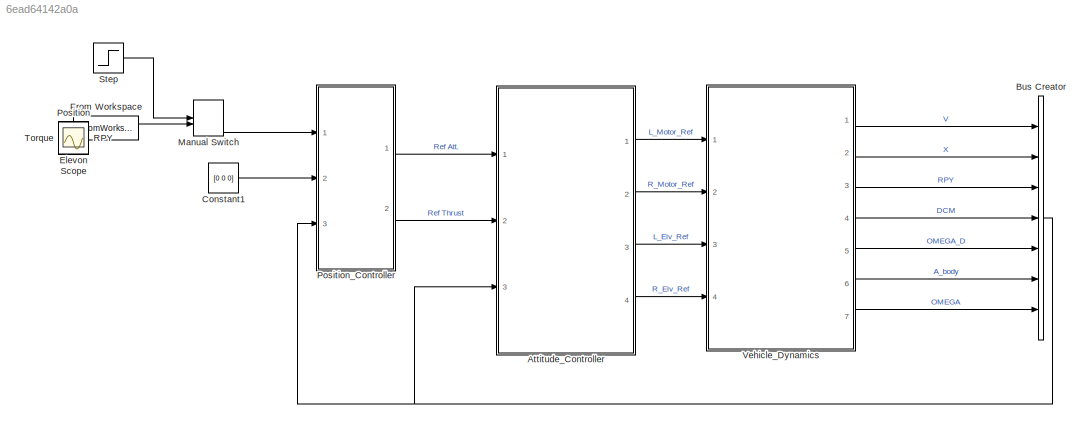
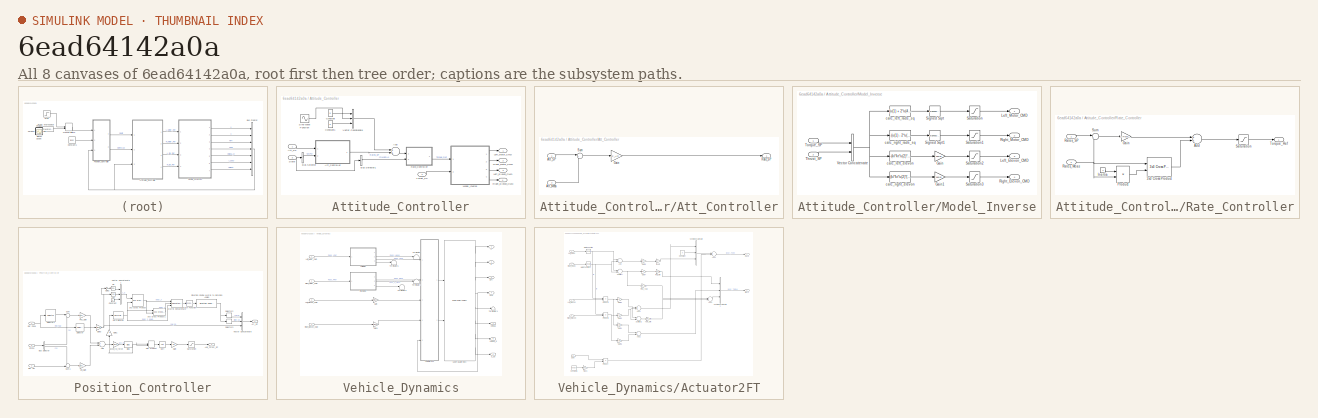
[diagram: thumbnail index - all 8 canvases of the model, root first then tree order]
MODEL slx_6ead64142a0a
KIND model
CONFIG AbsTol = auto
CONFIG EnableMultiTasking = off
CONFIG FixedStep = 0.0005
CONFIG MaxStep = auto
CONFIG MinStep = auto
CONFIG RelTol = 1e-3
CONFIG SampleTimeConstraint = Unconstrained
CONFIG Solver = VariableStepAuto
CONFIG SolverName = VariableStepAuto
CONFIG StartTime = 0.0
CONFIG StopTime = 10
WORKSPACE source: MAT-file member
WORKSPACE MCOS: class17 (value not decoded)
WORKSPACE MCOS: class17 (value not decoded)
BLOCK [SubSystem] Attitude_Controller
  Ports = [3, 4]
  RequestExecContextInheritance = off
  Variant = off
BLOCK [Sum] Attitude_Controller/Add
  InputSameDT = off
  OutDataTypeStr = Inherit: Inherit via internal rule
  Ports = [2, 1]
  SaturateOnIntegerOverflow = off
BLOCK [SubSystem] Attitude_Controller/Att_Controller
  Ports = [2, 1]
  RequestExecContextInheritance = off
  Variant = off
BLOCK [Inport] Attitude_Controller/Att_Controller/Att_Meas
  IconDisplay = Port number
  Port = 2
BLOCK [Inport] Attitude_Controller/Att_Controller/Att_SP
  IconDisplay = Port number
BLOCK [Gain] Attitude_Controller/Att_Controller/Gain
  Gain = P_Att
  OutDataTypeStr = Inherit: Inherit via internal rule
  ParamDataTypeStr = Inherit: Inherit via internal rule
  SaturateOnIntegerOverflow = off
BLOCK [Outport] Attitude_Controller/Att_Controller/Rate_SP
  IconDisplay = Port number
BLOCK [Sum] Attitude_Controller/Att_Controller/Sum
  IconShape = round
  InputSameDT = off
  Inputs = |+-
  OutDataTypeStr = Inherit: Inherit via internal rule
  Ports = [2, 1]
  SaturateOnIntegerOverflow = off
BLOCK [Inport] Attitude_Controller/Att_SP
  IconDisplay = Port number
BLOCK [BusSelector] Attitude_Controller/Bus Selector
  OutputAsBus = off
  OutputSignals = RPY
  Ports = [1, 1]
BLOCK [BusSelector] Attitude_Controller/Bus Selector1
  OutputAsBus = off
  OutputSignals = OMEGA
  Ports = [1, 1]
BLOCK [Constant] Attitude_Controller/Constant
  Value = 0
BLOCK [Constant] Attitude_Controller/Constant1
  Value = 0
BLOCK [Outport] Attitude_Controller/Left_Elevon_CMD
  IconDisplay = Port number
  Port = 3
BLOCK [Outport] Attitude_Controller/Left_Motor_CMD
  IconDisplay = Port number
BLOCK [SubSystem] Attitude_Controller/Model_Inverse
  Ports = [2, 4]
  RequestExecContextInheritance = off
  Variant = off
BLOCK [Gain] Attitude_Controller/Model_Inverse/Gain
  Gain = 180/pi
  OutDataTypeStr = Inherit: Inherit via internal rule
  ParamDataTypeStr = Inherit: Inherit via internal rule
  SaturateOnIntegerOverflow = off
BLOCK [Gain] Attitude_Controller/Model_Inverse/Gain1
  Gain = 180/pi
  OutDataTypeStr = Inherit: Inherit via internal rule
  ParamDataTypeStr = Inherit: Inherit via internal rule
  SaturateOnIntegerOverflow = off
BLOCK [Outport] Attitude_Controller/Model_Inverse/Left_Elevon_CMD
  IconDisplay = Port number
  Port = 3
BLOCK [Outport] Attitude_Controller/Model_Inverse/Left_Motor_CMD
  IconDisplay = Port number
BLOCK [Outport] Attitude_Controller/Model_Inverse/Right_Elevon_CMD
  IconDisplay = Port number
  Port = 4
BLOCK [Outport] Attitude_Controller/Model_Inverse/Right_Motor_CMD
  IconDisplay = Port number
  Port = 2
BLOCK [Saturate] Attitude_Controller/Model_Inverse/Saturation
  InputPortMap = u0
  LowerLimit = 0
  Ports = [1, 1]
  UpperLimit = Motor_Rads_Max
BLOCK [Saturate] Attitude_Controller/Model_Inverse/Saturation1
  InputPortMap = u0
  LowerLimit = 0
  Ports = [1, 1]
  UpperLimit = Motor_Rads_Max
BLOCK [Saturate] Attitude_Controller/Model_Inverse/Saturation2
  InputPortMap = u0
  LowerLimit = -60
  Ports = [1, 1]
  UpperLimit = 60
BLOCK [Saturate] Attitude_Controller/Model_Inverse/Saturation3
  InputPortMap = u0
  LowerLimit = -60
  Ports = [1, 1]
  UpperLimit = 60
BLOCK [Sqrt] Attitude_Controller/Model_Inverse/Signed Sqrt
  Operator = signedSqrt
BLOCK [Sqrt] Attitude_Controller/Model_Inverse/Signed Sqrt1
  Operator = signedSqrt
BLOCK [Inport] Attitude_Controller/Model_Inverse/Thrust_SP
  IconDisplay = Port number
  Port = 2
BLOCK [Inport] Attitude_Controller/Model_Inverse/Torque_SP
  IconDisplay = Port number
BLOCK [Concatenate] Attitude_Controller/Model_Inverse/Vector Concatenate
  Ports = [2, 1]
BLOCK [Fcn] Attitude_Controller/Model_Inverse/calc_left_elevon
  Expr = -(kl*kt*u(2)*(l^2)+kp*kt*u(3)*l-km*kp*kt*u(1))/(2*u(4)*kl*kp*l^2+kl*kp*u(1)*l)
BLOCK [Fcn] Attitude_Controller/Model_Inverse/calc_left_rads_sq
  Expr = (u(1) + 2*u(4)*l)/(2*kt*l)
BLOCK [Fcn] Attitude_Controller/Model_Inverse/calc_right_elevon
  Expr = (kl*kt*u(2)*(l^2)-kp*kt*u(3)*l+km*kp*kt*u(1))/(-2*u(4)*kl*kp*l^2+kl*kp*u(1)*l)
BLOCK [Fcn] Attitude_Controller/Model_Inverse/calc_right_rads_sq
  Expr = -(u(1) - 2*u(4)*l)/(2*kt*l)
BLOCK [SubSystem] Attitude_Controller/Rate_Controller
  Ports = [2, 1]
  RequestExecContextInheritance = off
  Variant = off
BLOCK [Reference] Attitude_Controller/Rate_Controller/3x3 Cross Product  REF=sharedutil/3x3 Cross Product
  Ports = [2, 1]
  SourceBlock = sharedutil/3x3 Cross Product
  SourceType = CrossProduct
BLOCK [Sum] Attitude_Controller/Rate_Controller/Add
  InputSameDT = off
  OutDataTypeStr = Inherit: Inherit via internal rule
  Ports = [2, 1]
  SaturateOnIntegerOverflow = off
BLOCK [Gain] Attitude_Controller/Rate_Controller/Gain
  Gain = 1./Rates_TC.*J
  Multiplication = Matrix(K*u)
  OutDataTypeStr = Inherit: Inherit via internal rule
  ParamDataTypeStr = Inherit: Inherit via internal rule
  SaturateOnIntegerOverflow = off
BLOCK [Constant] Attitude_Controller/Rate_Controller/Inertia
  Value = J
BLOCK [Product] Attitude_Controller/Rate_Controller/Product
  InputSameDT = off
  Multiplication = Matrix(*)
  OutDataTypeStr = Inherit: Inherit via internal rule
  Ports = [2, 1]
  RndMeth = Floor
  SaturateOnIntegerOverflow = off
BLOCK [Inport] Attitude_Controller/Rate_Controller/Rates_Meas
  IconDisplay = Port number
  Port = 2
BLOCK [Inport] Attitude_Controller/Rate_Controller/Rates_SP
  IconDisplay = Port number
BLOCK [Saturate] Attitude_Controller/Rate_Controller/Saturation
  InputPortMap = u0
  LowerLimit = -Rate_Max
  Ports = [1, 1]
  UpperLimit = Rate_Max
BLOCK [Sum] Attitude_Controller/Rate_Controller/Sum
  IconShape = round
  InputSameDT = off
  Inputs = |+-
  OutDataTypeStr = Inherit: Inherit via internal rule
  Ports = [2, 1]
  SaturateOnIntegerOverflow = off
BLOCK [Outport] Attitude_Controller/Rate_Controller/Torque_Ref
  IconDisplay = Port number
BLOCK [Outport] Attitude_Controller/Right_Elevon_CMD
  IconDisplay = Port number
  Port = 4
BLOCK [Outport] Attitude_Controller/Right_Motor_CMD
  IconDisplay = Port number
  Port = 2
BLOCK [Sin] Attitude_Controller/Sine Wave Function
  Amplitude = 0
  Frequency = 9.66
  Ports = [0, 1]
  SampleTime = 0
BLOCK [Inport] Attitude_Controller/State
  IconDisplay = Port number
  Port = 3
BLOCK [Inport] Attitude_Controller/Thrust_SP
  IconDisplay = Port number
  Port = 2
BLOCK [Concatenate] Attitude_Controller/Vector Concatenate
  NumInputs = 3
  Ports = [3, 1]
BLOCK [BusCreator] Bus Creator
  DisplayOption = bar
  InheritFromInputs = on
  Inputs = 7
  Ports = [7, 1]
BLOCK [Constant] Constant1
  Value = [0 0 0]
BLOCK [Scope] Elevon
  IOType = viewer
  NumInputPorts = 1
  Ports = []
  ScopeSpecificationString = Simulink.scopes.TimeScopeBlockCfg('CurrentConfiguration', extmgr.ConfigurationSet(extmgr.Configuration('Core','General UI',true),extmgr.Configuration('Core','Source UI',true),extmgr.Configuration('Sources','WiredSimulink',true,'DataLoggingVariableName','ScopeData6'),extmgr.Configuration('Visuals','Time Domain',true,'SerializedDisplays',{struct('MinYLimReal','-75.00000','MaxYLimReal','75.00000','YL...<+1482ch>
BLOCK [Scope] FT
  IOType = viewer
  NumInputPorts = 1
  Ports = []
  ScopeSpecificationString = Simulink.scopes.TimeScopeBlockCfg('CurrentConfiguration', extmgr.ConfigurationSet(extmgr.Configuration('Core','General UI',true),extmgr.Configuration('Core','Source UI',true),extmgr.Configuration('Sources','WiredSimulink',true,'DataLoggingVariableName','ScopeData5'),extmgr.Configuration('Visuals','Time Domain',true,'SerializedDisplays',{struct('MinYLimReal','-7.8362','MaxYLimReal','7.40402','YLabe...<+2176ch>
BLOCK [FromWorkspace] From Workspace
  Commented = on
  SampleTime = 0
  VariableName = ts
  ZeroCross = on
BLOCK [ManualSwitch] Manual Switch
BLOCK [Scope] Motor
  IOType = viewer
  NumInputPorts = 1
  Ports = []
  ScopeSpecificationString = Simulink.scopes.TimeScopeBlockCfg('CurrentConfiguration', extmgr.ConfigurationSet(extmgr.Configuration('Core','General UI',true),extmgr.Configuration('Core','Source UI',true),extmgr.Configuration('Sources','WiredSimulink',true,'DataLoggingVariableName','ScopeData4'),extmgr.Configuration('Visuals','Time Domain',true,'SerializedDisplays',{struct('MinYLimReal','-100.00026','MaxYLimReal','900.00003','...<+1520ch>
BLOCK [Scope] Position
  IOType = viewer
  NumInputPorts = 1
  Ports = []
  ScopeSpecificationString = Simulink.scopes.TimeScopeBlockCfg('CurrentConfiguration', extmgr.ConfigurationSet(extmgr.Configuration('Core','General UI',true),extmgr.Configuration('Core','Source UI',true),extmgr.Configuration('Sources','WiredSimulink',true,'DataLoggingVariableName','ScopeData7'),extmgr.Configuration('Visuals','Time Domain',true,'SerializedDisplays',{struct('MinYLimReal','-1.41173','MaxYLimReal','0.23066','YLab...<+7753ch>
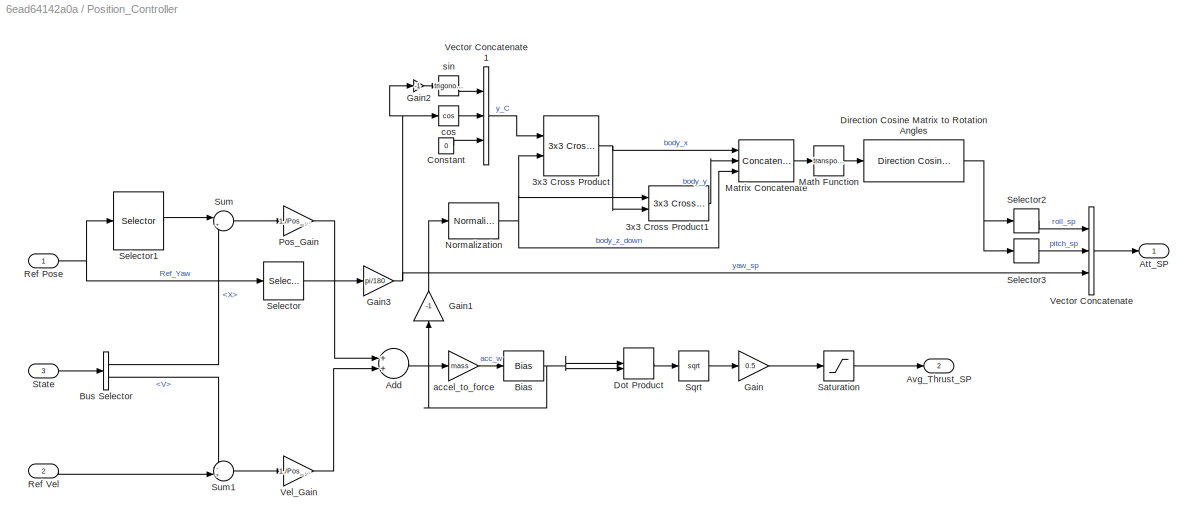
BLOCK [SubSystem] Position_Controller
  Ports = [3, 2]
  RequestExecContextInheritance = off
  Variant = off
BLOCK [Reference] Position_Controller/3x3 Cross Product  REF=sharedutil/3x3 Cross Product
  Ports = [2, 1]
  SourceBlock = sharedutil/3x3 Cross Product
  SourceType = CrossProduct
BLOCK [Reference] Position_Controller/3x3 Cross Product1  REF=sharedutil/3x3 Cross Product
  Ports = [2, 1]
  SourceBlock = sharedutil/3x3 Cross Product
  SourceType = CrossProduct
BLOCK [Sum] Position_Controller/Add
  InputSameDT = off
  OutDataTypeStr = Inherit: Inherit via internal rule
  Ports = [2, 1]
  SaturateOnIntegerOverflow = off
BLOCK [Outport] Position_Controller/Att_SP
  IconDisplay = Port number
BLOCK [Outport] Position_Controller/Avg_Thrust_SP
  IconDisplay = Port number
  Port = 2
BLOCK [Bias] Position_Controller/Bias
  Bias = [0 0 -mass*g]
  SaturateOnIntegerOverflow = off
BLOCK [BusSelector] Position_Controller/Bus Selector
  OutputAsBus = off
  OutputSignals = X,V
  Ports = [1, 2]
BLOCK [Constant] Position_Controller/Constant
  Value = 0
BLOCK [Reference] Position_Controller/Direction Cosine Matrix to Rotation Angles  REF=sharedtransform/Direction Cosine Matrix
to Rotation Angles
  AttributesFormatString = Rotation Order: %<rotationOrder>
  Ports = [1, 1]
  SourceBlock = sharedtransform/Direction Cosine Matrix\nto Rotation Angles
  SourceType = DCM2Ang
BLOCK [DotProduct] Position_Controller/Dot Product
  OutDataTypeStr = Inherit: Inherit via internal rule
BLOCK [Gain] Position_Controller/Gain
  Gain = 0.5
  OutDataTypeStr = Inherit: Inherit via internal rule
  ParamDataTypeStr = Inherit: Inherit via internal rule
  SaturateOnIntegerOverflow = off
BLOCK [Gain] Position_Controller/Gain1
  Gain = -1
  OutDataTypeStr = Inherit: Inherit via internal rule
  ParamDataTypeStr = Inherit: Inherit via internal rule
  SaturateOnIntegerOverflow = off
BLOCK [Gain] Position_Controller/Gain2
  Gain = -1
  OutDataTypeStr = Inherit: Inherit via internal rule
  ParamDataTypeStr = Inherit: Inherit via internal rule
  SaturateOnIntegerOverflow = off
BLOCK [Gain] Position_Controller/Gain3
  Gain = pi/180
  OutDataTypeStr = Inherit: Inherit via internal rule
  ParamDataTypeStr = Inherit: Inherit via internal rule
  SaturateOnIntegerOverflow = off
BLOCK [Math] Position_Controller/Math Function
  Operator = transpose
  Ports = [1, 1]
BLOCK [Concatenate] Position_Controller/Matrix Concatenate
  ConcatenateDimension = 2
  Mode = Multidimensional array
  NumInputs = 3
  Ports = [3, 1]
BLOCK [Reference] Position_Controller/Normalization  REF=dspmathops/Normalization
  Ports = [1, 1]
  SourceBlock = dspmathops/Normalization
  SourceProductBaseCode = DS
  SourceProductName = DSP System Toolbox
  SourceType = Normalization
BLOCK [Gain] Position_Controller/Pos_Gain
  Gain = 1./Pos_TC./Pos_TC
  OutDataTypeStr = Inherit: Inherit via internal rule
  ParamDataTypeStr = Inherit: Inherit via internal rule
  SaturateOnIntegerOverflow = off
BLOCK [Inport] Position_Controller/Ref Pose
  IconDisplay = Port number
BLOCK [Inport] Position_Controller/Ref Vel
  IconDisplay = Port number
  Port = 2
BLOCK [Saturate] Position_Controller/Saturation
  InputPortMap = u0
  LowerLimit = 0
  Ports = [1, 1]
  UpperLimit = Inf
BLOCK [Selector] Position_Controller/Selector
  IndexOptions = Index vector (dialog)
  Indices = 4
  InputPortWidth = 4
  OutputSizes = 1
  Ports = [1, 1]
BLOCK [Selector] Position_Controller/Selector1
  IndexOptions = Index vector (dialog)
  Indices = [1 2 3]
  InputPortWidth = 4
  OutputSizes = 1
  Ports = [1, 1]
BLOCK [Selector] Position_Controller/Selector2
  IndexOptions = Index vector (dialog)
  Indices = 3
  InputPortWidth = 3
  OutputSizes = 1
  Ports = [1, 1]
BLOCK [Selector] Position_Controller/Selector3
  IndexOptions = Index vector (dialog)
  Indices = 2
  InputPortWidth = 3
  OutputSizes = 1
  Ports = [1, 1]
BLOCK [Sqrt] Position_Controller/Sqrt
BLOCK [Inport] Position_Controller/State
  IconDisplay = Port number
  Port = 3
BLOCK [Sum] Position_Controller/Sum
  IconShape = round
  InputSameDT = off
  Inputs = |+-
  OutDataTypeStr = Inherit: Inherit via internal rule
  Ports = [2, 1]
  SaturateOnIntegerOverflow = off
BLOCK [Sum] Position_Controller/Sum1
  IconShape = round
  InputSameDT = off
  Inputs = -+|
  OutDataTypeStr = Inherit: Inherit via internal rule
  Ports = [2, 1]
  SaturateOnIntegerOverflow = off
BLOCK [Concatenate] Position_Controller/Vector Concatenate
  NumInputs = 3
  Ports = [3, 1]
BLOCK [Concatenate] Position_Controller/Vector Concatenate1
  NumInputs = 3
  Ports = [3, 1]
BLOCK [Gain] Position_Controller/Vel_Gain
  Gain = 1./Pos_TC.*Pos_DR
  OutDataTypeStr = Inherit: Inherit via internal rule
  ParamDataTypeStr = Inherit: Inherit via internal rule
  SaturateOnIntegerOverflow = off
BLOCK [Gain] Position_Controller/accel_to_force
  Gain = mass
  OutDataTypeStr = Inherit: Inherit via internal rule
  ParamDataTypeStr = Inherit: Inherit via internal rule
  SaturateOnIntegerOverflow = off
BLOCK [Trigonometry] Position_Controller/cos
  Operator = cos
  Ports = [1, 1]
BLOCK [Trigonometry] Position_Controller/sin
  Ports = [1, 1]
BLOCK [Scope] RPY
  IOType = viewer
  NumInputPorts = 1
  Ports = []
  ScopeSpecificationString = Simulink.scopes.TimeScopeBlockCfg('CurrentConfiguration', extmgr.ConfigurationSet(extmgr.Configuration('Core','General UI',true),extmgr.Configuration('Core','Source UI',true),extmgr.Configuration('Sources','WiredSimulink',true,'DataLoggingVariableName','ScopeData1'),extmgr.Configuration('Visuals','Time Domain',true,'SerializedDisplays',{struct('MinYLimReal','-2.65453','MaxYLimReal','0.32877','YLab...<+1480ch>
BLOCK [Scope] Scope
  IOType = viewer
  NumInputPorts = 1
  Ports = []
  ScopeSpecificationString = Simulink.scopes.TimeScopeBlockCfg('CurrentConfiguration', extmgr.ConfigurationSet(extmgr.Configuration('Core','General UI',true),extmgr.Configuration('Core','Source UI',true),extmgr.Configuration('Sources','WiredSimulink',true,'DataLoggingVariableName','ScopeData1'),extmgr.Configuration('Visuals','Time Domain',true,'SerializedDisplays',{struct('MinYLimReal','-10.00000','MaxYLimReal','10.00000','YL...<+1394ch>
BLOCK [Step] Step
  After = [-1 0 -0 0]
  Before = [0 0 -0 0]
  SampleTime = 0
  Time = 5
BLOCK [Scope] Torque
  IOType = viewer
  NumInputPorts = 1
  Ports = []
  ScopeSpecificationString = Simulink.scopes.TimeScopeBlockCfg('CurrentConfiguration', extmgr.ConfigurationSet(extmgr.Configuration('Core','General UI',true),extmgr.Configuration('Core','Source UI',true),extmgr.Configuration('Sources','WiredSimulink',true,'DataLoggingVariableName','ScopeData7'),extmgr.Configuration('Visuals','Time Domain',true,'SerializedDisplays',{struct('MinYLimReal','-11.16519','MaxYLimReal','1.68502','YLa...<+1500ch>
BLOCK [SubSystem] Vehicle_Dynamics
  Ports = [4, 7]
  RequestExecContextInheritance = off
  Variant = off
BLOCK [Reference] Vehicle_Dynamics/6DOF (Quaternion)  REF=shared6dof/6DOF (Euler Angles)
  Ports = [2, 8]
  SourceBlock = shared6dof/6DOF (Euler Angles)
  SourceType = 6DOF EoM (Body Axis)
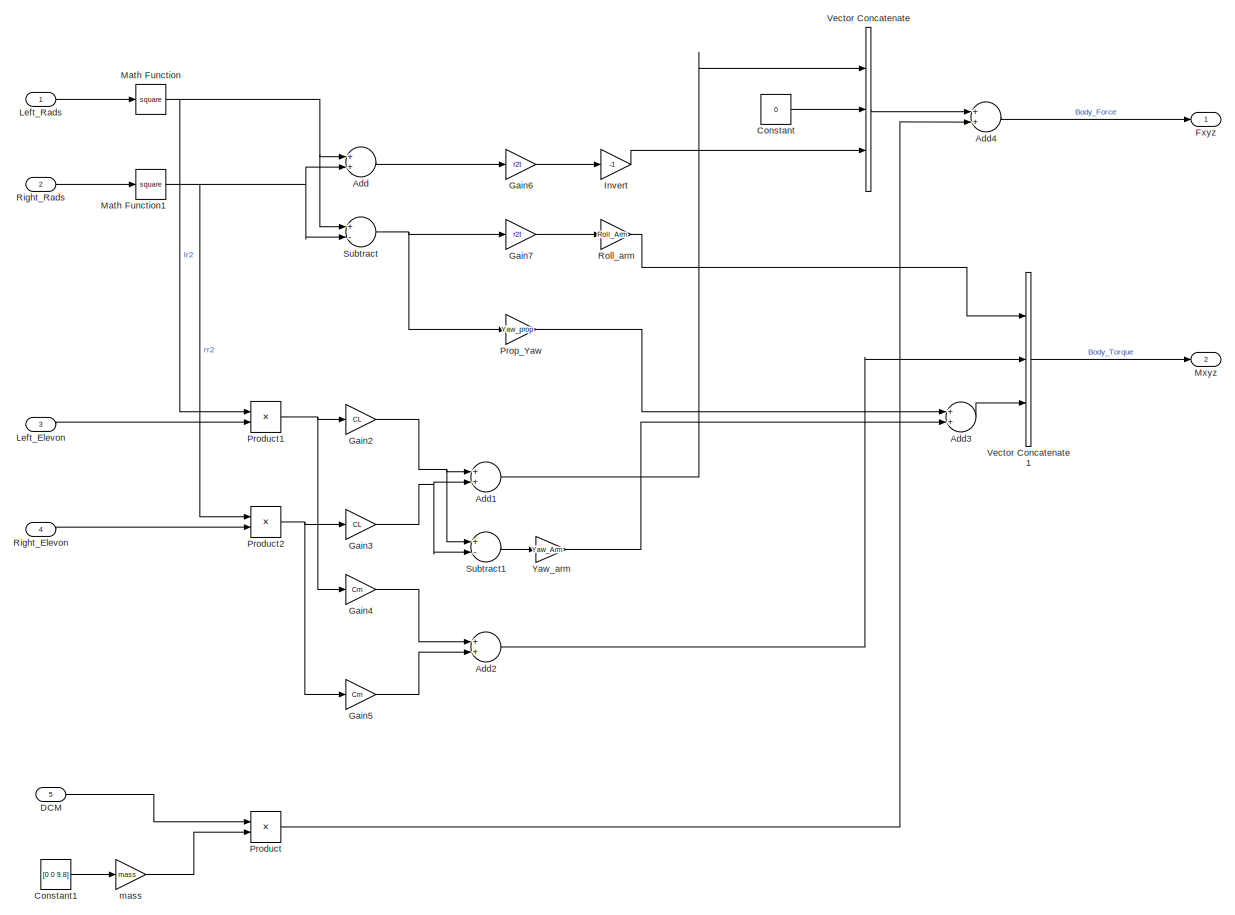
[diagram: Vehicle_Dynamics/Actuator2FT - part 1/1, most of the canvas]
BLOCK [SubSystem] Vehicle_Dynamics/Actuator2FT
  Ports = [5, 2]
  RequestExecContextInheritance = off
  Variant = off
BLOCK [Sum] Vehicle_Dynamics/Actuator2FT/Add
  InputSameDT = off
  OutDataTypeStr = Inherit: Inherit via internal rule
  Ports = [2, 1]
  SaturateOnIntegerOverflow = off
BLOCK [Sum] Vehicle_Dynamics/Actuator2FT/Add1
  InputSameDT = off
  OutDataTypeStr = Inherit: Inherit via internal rule
  Ports = [2, 1]
  SaturateOnIntegerOverflow = off
BLOCK [Sum] Vehicle_Dynamics/Actuator2FT/Add2
  InputSameDT = off
  OutDataTypeStr = Inherit: Inherit via internal rule
  Ports = [2, 1]
  SaturateOnIntegerOverflow = off
BLOCK [Sum] Vehicle_Dynamics/Actuator2FT/Add3
  InputSameDT = off
  OutDataTypeStr = Inherit: Inherit via internal rule
  Ports = [2, 1]
  SaturateOnIntegerOverflow = off
BLOCK [Sum] Vehicle_Dynamics/Actuator2FT/Add4
  InputSameDT = off
  OutDataTypeStr = Inherit: Inherit via internal rule
  Ports = [2, 1]
  SaturateOnIntegerOverflow = off
BLOCK [Constant] Vehicle_Dynamics/Actuator2FT/Constant
  Value = 0
BLOCK [Constant] Vehicle_Dynamics/Actuator2FT/Constant1
  Value = [0 0 9.8]
BLOCK [Inport] Vehicle_Dynamics/Actuator2FT/DCM
  IconDisplay = Port number
  Port = 5
BLOCK [Outport] Vehicle_Dynamics/Actuator2FT/Fxyz
  IconDisplay = Port number
BLOCK [Gain] Vehicle_Dynamics/Actuator2FT/Gain2
  Gain = CL
  OutDataTypeStr = Inherit: Inherit via internal rule
  ParamDataTypeStr = Inherit: Inherit via internal rule
  SaturateOnIntegerOverflow = off
BLOCK [Gain] Vehicle_Dynamics/Actuator2FT/Gain3
  Gain = CL
  OutDataTypeStr = Inherit: Inherit via internal rule
  ParamDataTypeStr = Inherit: Inherit via internal rule
  SaturateOnIntegerOverflow = off
BLOCK [Gain] Vehicle_Dynamics/Actuator2FT/Gain4
  Gain = Cm
  OutDataTypeStr = Inherit: Inherit via internal rule
  ParamDataTypeStr = Inherit: Inherit via internal rule
  SaturateOnIntegerOverflow = off
BLOCK [Gain] Vehicle_Dynamics/Actuator2FT/Gain5
  Gain = Cm
  OutDataTypeStr = Inherit: Inherit via internal rule
  ParamDataTypeStr = Inherit: Inherit via internal rule
  SaturateOnIntegerOverflow = off
BLOCK [Gain] Vehicle_Dynamics/Actuator2FT/Gain6
  Gain = r2t
  OutDataTypeStr = Inherit: Inherit via internal rule
  ParamDataTypeStr = Inherit: Inherit via internal rule
  SaturateOnIntegerOverflow = off
BLOCK [Gain] Vehicle_Dynamics/Actuator2FT/Gain7
  Gain = r2t
  OutDataTypeStr = Inherit: Inherit via internal rule
  ParamDataTypeStr = Inherit: Inherit via internal rule
  SaturateOnIntegerOverflow = off
BLOCK [Gain] Vehicle_Dynamics/Actuator2FT/Invert
  Gain = -1
  OutDataTypeStr = Inherit: Inherit via internal rule
  ParamDataTypeStr = Inherit: Inherit via internal rule
  SaturateOnIntegerOverflow = off
BLOCK [Inport] Vehicle_Dynamics/Actuator2FT/Left_Elevon
  IconDisplay = Port number
  Port = 3
BLOCK [Inport] Vehicle_Dynamics/Actuator2FT/Left_Rads
  IconDisplay = Port number
BLOCK [Math] Vehicle_Dynamics/Actuator2FT/Math Function
  Operator = square
  Ports = [1, 1]
BLOCK [Math] Vehicle_Dynamics/Actuator2FT/Math Function1
  Operator = square
  Ports = [1, 1]
BLOCK [Outport] Vehicle_Dynamics/Actuator2FT/Mxyz
  IconDisplay = Port number
  Port = 2
BLOCK [Product] Vehicle_Dynamics/Actuator2FT/Product
  InputSameDT = off
  Multiplication = Matrix(*)
  OutDataTypeStr = Inherit: Inherit via internal rule
  Ports = [2, 1]
  RndMeth = Floor
  SaturateOnIntegerOverflow = off
BLOCK [Product] Vehicle_Dynamics/Actuator2FT/Product1
  InputSameDT = off
  OutDataTypeStr = Inherit: Inherit via internal rule
  Ports = [2, 1]
  RndMeth = Floor
  SaturateOnIntegerOverflow = off
BLOCK [Product] Vehicle_Dynamics/Actuator2FT/Product2
  InputSameDT = off
  OutDataTypeStr = Inherit: Inherit via internal rule
  Ports = [2, 1]
  RndMeth = Floor
  SaturateOnIntegerOverflow = off
BLOCK [Gain] Vehicle_Dynamics/Actuator2FT/Prop_Yaw
  Gain = Yaw_prop
  OutDataTypeStr = Inherit: Inherit via internal rule
  ParamDataTypeStr = Inherit: Inherit via internal rule
  SaturateOnIntegerOverflow = off
BLOCK [Inport] Vehicle_Dynamics/Actuator2FT/Right_Elevon
  IconDisplay = Port number
  Port = 4
BLOCK [Inport] Vehicle_Dynamics/Actuator2FT/Right_Rads
  IconDisplay = Port number
  Port = 2
BLOCK [Gain] Vehicle_Dynamics/Actuator2FT/Roll_arm
  Gain = Roll_Arm
  OutDataTypeStr = Inherit: Inherit via internal rule
  ParamDataTypeStr = Inherit: Inherit via internal rule
  SaturateOnIntegerOverflow = off
BLOCK [Sum] Vehicle_Dynamics/Actuator2FT/Subtract
  InputSameDT = off
  Inputs = +-
  OutDataTypeStr = Inherit: Inherit via internal rule
  Ports = [2, 1]
  SaturateOnIntegerOverflow = off
BLOCK [Sum] Vehicle_Dynamics/Actuator2FT/Subtract1
  InputSameDT = off
  Inputs = +-
  OutDataTypeStr = Inherit: Inherit via internal rule
  Ports = [2, 1]
  SaturateOnIntegerOverflow = off
BLOCK [Concatenate] Vehicle_Dynamics/Actuator2FT/Vector Concatenate
  NumInputs = 3
  Ports = [3, 1]
BLOCK [Concatenate] Vehicle_Dynamics/Actuator2FT/Vector Concatenate1
  NumInputs = 3
  Ports = [3, 1]
BLOCK [Gain] Vehicle_Dynamics/Actuator2FT/Yaw_arm
  Gain = Yaw_Arm
  OutDataTypeStr = Inherit: Inherit via internal rule
  ParamDataTypeStr = Inherit: Inherit via internal rule
  SaturateOnIntegerOverflow = off
BLOCK [Gain] Vehicle_Dynamics/Actuator2FT/mass
  Gain = mass
  OutDataTypeStr = Inherit: Inherit via internal rule
  ParamDataTypeStr = Inherit: Inherit via internal rule
  SaturateOnIntegerOverflow = off
BLOCK [Outport] Vehicle_Dynamics/DCM
  IconDisplay = Port number
  Port = 4
BLOCK [Gain] Vehicle_Dynamics/Gain
  Gain = pi/180
  OutDataTypeStr = Inherit: Inherit via internal rule
  ParamDataTypeStr = Inherit: Inherit via internal rule
  SaturateOnIntegerOverflow = off
BLOCK [Gain] Vehicle_Dynamics/Gain1
  Gain = pi/180
  OutDataTypeStr = Inherit: Inherit via internal rule
  ParamDataTypeStr = Inherit: Inherit via internal rule
  SaturateOnIntegerOverflow = off
BLOCK [ModelReference] Vehicle_Dynamics/Left Motor
  ModelNameDialog = Nonlinear_Motor_Tracking.slx
  ModelReferenceVersion = 1.31
  Ports = [1, 3]
  Variant = off
BLOCK [Inport] Vehicle_Dynamics/Left_Elevon_CMD
  IconDisplay = Port number
  Port = 3
BLOCK [Inport] Vehicle_Dynamics/Left_Motor_CMD
  IconDisplay = Port number
BLOCK [Outport] Vehicle_Dynamics/RPY
  IconDisplay = Port number
  Port = 3
BLOCK [ModelReference] Vehicle_Dynamics/Right Motor
  ModelNameDialog = Nonlinear_Motor_Tracking.slx
  ModelReferenceVersion = 1.31
  Ports = [1, 3]
  Variant = off
BLOCK [Inport] Vehicle_Dynamics/Right_Elevon_CMD
  IconDisplay = Port number
  Port = 4
BLOCK [Inport] Vehicle_Dynamics/Right_Motor_CMD
  IconDisplay = Port number
  Port = 2
BLOCK [Terminator] Vehicle_Dynamics/Terminator
BLOCK [Terminator] Vehicle_Dynamics/Terminator1
BLOCK [Terminator] Vehicle_Dynamics/Terminator4
BLOCK [Terminator] Vehicle_Dynamics/Terminator5
BLOCK [Terminator] Vehicle_Dynamics/Terminator6
BLOCK [Outport] Vehicle_Dynamics/V
  IconDisplay = Port number
BLOCK [Outport] Vehicle_Dynamics/X
  IconDisplay = Port number
  Port = 2
BLOCK [Outport] Vehicle_Dynamics/a_bb
  IconDisplay = Port number
  Port = 6
BLOCK [Outport] Vehicle_Dynamics/omega
  IconDisplay = Port number
  Port = 7
BLOCK [Outport] Vehicle_Dynamics/omega_d
  IconDisplay = Port number
  Port = 5
LINE Attitude_Controller/Add:1 -> Attitude_Controller/Rate_Controller:1
LINE Attitude_Controller/Att_Controller/Att_Meas:1 -> Attitude_Controller/Att_Controller/Sum:2
LINE Attitude_Controller/Att_Controller/Att_SP:1 -> Attitude_Controller/Att_Controller/Sum:1
LINE Attitude_Controller/Att_Controller/Gain:1 -> Attitude_Controller/Att_Controller/Rate_SP:1
LINE Attitude_Controller/Att_Controller/Sum:1 -> Attitude_Controller/Att_Controller/Gain:1
LINE Attitude_Controller/Att_Controller:1 -> Attitude_Controller/Add:2
LINE Attitude_Controller/Att_SP:1 -> Attitude_Controller/Att_Controller:1
LINE Attitude_Controller/Bus Selector1:1 -> Attitude_Controller/Rate_Controller:2
LINE Attitude_Controller/Bus Selector:1 -> Attitude_Controller/Att_Controller:2
LINE Attitude_Controller/Constant1:1 -> Attitude_Controller/Vector Concatenate:3
LINE Attitude_Controller/Constant:1 -> Attitude_Controller/Vector Concatenate:1
LINE Attitude_Controller/Model_Inverse/Gain1:1 -> Attitude_Controller/Model_Inverse/Saturation3:1
LINE Attitude_Controller/Model_Inverse/Gain:1 -> Attitude_Controller/Model_Inverse/Saturation2:1
LINE Attitude_Controller/Model_Inverse/Saturation1:1 -> Attitude_Controller/Model_Inverse/Right_Motor_CMD:1
LINE Attitude_Controller/Model_Inverse/Saturation2:1 -> Attitude_Controller/Model_Inverse/Left_Elevon_CMD:1
LINE Attitude_Controller/Model_Inverse/Saturation3:1 -> Attitude_Controller/Model_Inverse/Right_Elevon_CMD:1
LINE Attitude_Controller/Model_Inverse/Saturation:1 -> Attitude_Controller/Model_Inverse/Left_Motor_CMD:1
LINE Attitude_Controller/Model_Inverse/Signed Sqrt1:1 -> Attitude_Controller/Model_Inverse/Saturation1:1
LINE Attitude_Controller/Model_Inverse/Signed Sqrt:1 -> Attitude_Controller/Model_Inverse/Saturation:1
LINE Attitude_Controller/Model_Inverse/Thrust_SP:1 -> Attitude_Controller/Model_Inverse/Vector Concatenate:2
LINE Attitude_Controller/Model_Inverse/Torque_SP:1 -> Attitude_Controller/Model_Inverse/Vector Concatenate:1
NET Attitude_Controller/Model_Inverse/Vector Concatenate:1 -> Attitude_Controller/Model_Inverse/calc_left_elevon:1, Attitude_Controller/Model_Inverse/calc_left_rads_sq:1, Attitude_Controller/Model_Inverse/calc_right_elevon:1, Attitude_Controller/Model_Inverse/calc_right_rads_sq:1
LINE Attitude_Controller/Model_Inverse/calc_left_elevon:1 -> Attitude_Controller/Model_Inverse/Gain:1
LINE Attitude_Controller/Model_Inverse/calc_left_rads_sq:1 -> Attitude_Controller/Model_Inverse/Signed Sqrt:1
LINE Attitude_Controller/Model_Inverse/calc_right_elevon:1 -> Attitude_Controller/Model_Inverse/Gain1:1
LINE Attitude_Controller/Model_Inverse/calc_right_rads_sq:1 -> Attitude_Controller/Model_Inverse/Signed Sqrt1:1
LINE Attitude_Controller/Model_Inverse:1 -> Attitude_Controller/Left_Motor_CMD:1
LINE Attitude_Controller/Model_Inverse:2 -> Attitude_Controller/Right_Motor_CMD:1
LINE Attitude_Controller/Model_Inverse:3 -> Attitude_Controller/Left_Elevon_CMD:1
LINE Attitude_Controller/Model_Inverse:4 -> Attitude_Controller/Right_Elevon_CMD:1
LINE Attitude_Controller/Rate_Controller/3x3 Cross Product:1 -> Attitude_Controller/Rate_Controller/Add:2
LINE Attitude_Controller/Rate_Controller/Add:1 -> Attitude_Controller/Rate_Controller/Saturation:1
LINE Attitude_Controller/Rate_Controller/Gain:1 -> Attitude_Controller/Rate_Controller/Add:1
LINE Attitude_Controller/Rate_Controller/Inertia:1 -> Attitude_Controller/Rate_Controller/Product:1
LINE Attitude_Controller/Rate_Controller/Product:1 -> Attitude_Controller/Rate_Controller/3x3 Cross Product:2
NET Attitude_Controller/Rate_Controller/Rates_Meas:1 -> Attitude_Controller/Rate_Controller/3x3 Cross Product:1, Attitude_Controller/Rate_Controller/Product:2, Attitude_Controller/Rate_Controller/Sum:2
LINE Attitude_Controller/Rate_Controller/Rates_SP:1 -> Attitude_Controller/Rate_Controller/Sum:1
LINE Attitude_Controller/Rate_Controller/Saturation:1 -> Attitude_Controller/Rate_Controller/Torque_Ref:1
LINE Attitude_Controller/Rate_Controller/Sum:1 -> Attitude_Controller/Rate_Controller/Gain:1
LINE Attitude_Controller/Rate_Controller:1 -> Attitude_Controller/Model_Inverse:1
LINE Attitude_Controller/Sine Wave Function:1 -> Attitude_Controller/Vector Concatenate:2
NET Attitude_Controller/State:1 -> Attitude_Controller/Bus Selector1:1, Attitude_Controller/Bus Selector:1
LINE Attitude_Controller/Thrust_SP:1 -> Attitude_Controller/Model_Inverse:2
LINE Attitude_Controller/Vector Concatenate:1 -> Attitude_Controller/Add:1
LINE Attitude_Controller:1 -> Vehicle_Dynamics:1
LINE Attitude_Controller:2 -> Vehicle_Dynamics:2
LINE Attitude_Controller:3 -> Vehicle_Dynamics:3
LINE Attitude_Controller:4 -> Vehicle_Dynamics:4
NET Bus Creator:1 -> Attitude_Controller:3, Position_Controller:3
LINE Constant1:1 -> Position_Controller:2
LINE From Workspace:1 -> Manual Switch:2
LINE Manual Switch:1 -> Position_Controller:1
LINE Position_Controller/3x3 Cross Product1:1 -> Position_Controller/Matrix Concatenate:2
NET Position_Controller/3x3 Cross Product:1 -> Position_Controller/3x3 Cross Product1:2, Position_Controller/Matrix Concatenate:1
LINE Position_Controller/Add:1 -> Position_Controller/accel_to_force:1
NET Position_Controller/Bias:1 -> Position_Controller/Dot Product:1, Position_Controller/Dot Product:2, Position_Controller/Gain1:1
LINE Position_Controller/Bus Selector:1 -> Position_Controller/Sum:2
LINE Position_Controller/Bus Selector:2 -> Position_Controller/Sum1:1
LINE Position_Controller/Constant:1 -> Position_Controller/Vector Concatenate1:3
NET Position_Controller/Direction Cosine Matrix to Rotation Angles:1 -> Position_Controller/Selector2:1, Position_Controller/Selector3:1
LINE Position_Controller/Dot Product:1 -> Position_Controller/Sqrt:1
LINE Position_Controller/Gain1:1 -> Position_Controller/Normalization:1
LINE Position_Controller/Gain2:1 -> Position_Controller/sin:1
NET Position_Controller/Gain3:1 -> Position_Controller/Gain2:1, Position_Controller/Vector Concatenate:3, Position_Controller/cos:1
LINE Position_Controller/Gain:1 -> Position_Controller/Saturation:1
LINE Position_Controller/Math Function:1 -> Position_Controller/Direction Cosine Matrix to Rotation Angles:1
LINE Position_Controller/Matrix Concatenate:1 -> Position_Controller/Math Function:1
NET Position_Controller/Normalization:1 -> Position_Controller/3x3 Cross Product1:1, Position_Controller/3x3 Cross Product:2, Position_Controller/Matrix Concatenate:3
LINE Position_Controller/Pos_Gain:1 -> Position_Controller/Add:1
NET Position_Controller/Ref Pose:1 -> Position_Controller/Selector1:1, Position_Controller/Selector:1
LINE Position_Controller/Ref Vel:1 -> Position_Controller/Sum1:2
LINE Position_Controller/Saturation:1 -> Position_Controller/Avg_Thrust_SP:1
LINE Position_Controller/Selector1:1 -> Position_Controller/Sum:1
LINE Position_Controller/Selector2:1 -> Position_Controller/Vector Concatenate:1
LINE Position_Controller/Selector3:1 -> Position_Controller/Vector Concatenate:2
LINE Position_Controller/Selector:1 -> Position_Controller/Gain3:1
LINE Position_Controller/Sqrt:1 -> Position_Controller/Gain:1
LINE Position_Controller/State:1 -> Position_Controller/Bus Selector:1
LINE Position_Controller/Sum1:1 -> Position_Controller/Vel_Gain:1
LINE Position_Controller/Sum:1 -> Position_Controller/Pos_Gain:1
LINE Position_Controller/Vector Concatenate1:1 -> Position_Controller/3x3 Cross Product:1
LINE Position_Controller/Vector Concatenate:1 -> Position_Controller/Att_SP:1
LINE Position_Controller/Vel_Gain:1 -> Position_Controller/Add:2
LINE Position_Controller/accel_to_force:1 -> Position_Controller/Bias:1
LINE Position_Controller/cos:1 -> Position_Controller/Vector Concatenate1:2
LINE Position_Controller/sin:1 -> Position_Controller/Vector Concatenate1:1
LINE Position_Controller:1 -> Attitude_Controller:1
LINE Position_Controller:2 -> Attitude_Controller:2
LINE Step:1 -> Manual Switch:1
LINE Vehicle_Dynamics/6DOF (Quaternion):1 -> Vehicle_Dynamics/V:1
LINE Vehicle_Dynamics/6DOF (Quaternion):2 -> Vehicle_Dynamics/X:1
LINE Vehicle_Dynamics/6DOF (Quaternion):3 -> Vehicle_Dynamics/RPY:1
NET Vehicle_Dynamics/6DOF (Quaternion):4 -> Vehicle_Dynamics/Actuator2FT:5, Vehicle_Dynamics/DCM:1
LINE Vehicle_Dynamics/6DOF (Quaternion):5 -> Vehicle_Dynamics/Terminator4:1
LINE Vehicle_Dynamics/6DOF (Quaternion):6 -> Vehicle_Dynamics/omega:1
LINE Vehicle_Dynamics/6DOF (Quaternion):7 -> Vehicle_Dynamics/omega_d:1
LINE Vehicle_Dynamics/6DOF (Quaternion):8 -> Vehicle_Dynamics/a_bb:1
LINE Vehicle_Dynamics/Actuator2FT/Add1:1 -> Vehicle_Dynamics/Actuator2FT/Vector Concatenate:1
LINE Vehicle_Dynamics/Actuator2FT/Add2:1 -> Vehicle_Dynamics/Actuator2FT/Vector Concatenate1:2
LINE Vehicle_Dynamics/Actuator2FT/Add3:1 -> Vehicle_Dynamics/Actuator2FT/Vector Concatenate1:3
LINE Vehicle_Dynamics/Actuator2FT/Add4:1 -> Vehicle_Dynamics/Actuator2FT/Fxyz:1
LINE Vehicle_Dynamics/Actuator2FT/Add:1 -> Vehicle_Dynamics/Actuator2FT/Gain6:1
LINE Vehicle_Dynamics/Actuator2FT/Constant1:1 -> Vehicle_Dynamics/Actuator2FT/mass:1
LINE Vehicle_Dynamics/Actuator2FT/Constant:1 -> Vehicle_Dynamics/Actuator2FT/Vector Concatenate:2
LINE Vehicle_Dynamics/Actuator2FT/DCM:1 -> Vehicle_Dynamics/Actuator2FT/Product:1
NET Vehicle_Dynamics/Actuator2FT/Gain2:1 -> Vehicle_Dynamics/Actuator2FT/Add1:1, Vehicle_Dynamics/Actuator2FT/Subtract1:1
NET Vehicle_Dynamics/Actuator2FT/Gain3:1 -> Vehicle_Dynamics/Actuator2FT/Add1:2, Vehicle_Dynamics/Actuator2FT/Subtract1:2
LINE Vehicle_Dynamics/Actuator2FT/Gain4:1 -> Vehicle_Dynamics/Actuator2FT/Add2:1
LINE Vehicle_Dynamics/Actuator2FT/Gain5:1 -> Vehicle_Dynamics/Actuator2FT/Add2:2
LINE Vehicle_Dynamics/Actuator2FT/Gain6:1 -> Vehicle_Dynamics/Actuator2FT/Invert:1
LINE Vehicle_Dynamics/Actuator2FT/Gain7:1 -> Vehicle_Dynamics/Actuator2FT/Roll_arm:1
LINE Vehicle_Dynamics/Actuator2FT/Invert:1 -> Vehicle_Dynamics/Actuator2FT/Vector Concatenate:3
LINE Vehicle_Dynamics/Actuator2FT/Left_Elevon:1 -> Vehicle_Dynamics/Actuator2FT/Product1:2
LINE Vehicle_Dynamics/Actuator2FT/Left_Rads:1 -> Vehicle_Dynamics/Actuator2FT/Math Function:1
NET Vehicle_Dynamics/Actuator2FT/Math Function1:1 -> Vehicle_Dynamics/Actuator2FT/Add:2, Vehicle_Dynamics/Actuator2FT/Product2:1, Vehicle_Dynamics/Actuator2FT/Subtract:2
NET Vehicle_Dynamics/Actuator2FT/Math Function:1 -> Vehicle_Dynamics/Actuator2FT/Add:1, Vehicle_Dynamics/Actuator2FT/Product1:1, Vehicle_Dynamics/Actuator2FT/Subtract:1
NET Vehicle_Dynamics/Actuator2FT/Product1:1 -> Vehicle_Dynamics/Actuator2FT/Gain2:1, Vehicle_Dynamics/Actuator2FT/Gain4:1
NET Vehicle_Dynamics/Actuator2FT/Product2:1 -> Vehicle_Dynamics/Actuator2FT/Gain3:1, Vehicle_Dynamics/Actuator2FT/Gain5:1
LINE Vehicle_Dynamics/Actuator2FT/Product:1 -> Vehicle_Dynamics/Actuator2FT/Add4:2
LINE Vehicle_Dynamics/Actuator2FT/Prop_Yaw:1 -> Vehicle_Dynamics/Actuator2FT/Add3:1
LINE Vehicle_Dynamics/Actuator2FT/Right_Elevon:1 -> Vehicle_Dynamics/Actuator2FT/Product2:2
LINE Vehicle_Dynamics/Actuator2FT/Right_Rads:1 -> Vehicle_Dynamics/Actuator2FT/Math Function1:1
LINE Vehicle_Dynamics/Actuator2FT/Roll_arm:1 -> Vehicle_Dynamics/Actuator2FT/Vector Concatenate1:1
LINE Vehicle_Dynamics/Actuator2FT/Subtract1:1 -> Vehicle_Dynamics/Actuator2FT/Yaw_arm:1
NET Vehicle_Dynamics/Actuator2FT/Subtract:1 -> Vehicle_Dynamics/Actuator2FT/Gain7:1, Vehicle_Dynamics/Actuator2FT/Prop_Yaw:1
LINE Vehicle_Dynamics/Actuator2FT/Vector Concatenate1:1 -> Vehicle_Dynamics/Actuator2FT/Mxyz:1
LINE Vehicle_Dynamics/Actuator2FT/Vector Concatenate:1 -> Vehicle_Dynamics/Actuator2FT/Add4:1
LINE Vehicle_Dynamics/Actuator2FT/Yaw_arm:1 -> Vehicle_Dynamics/Actuator2FT/Add3:2
LINE Vehicle_Dynamics/Actuator2FT/mass:1 -> Vehicle_Dynamics/Actuator2FT/Product:2
LINE Vehicle_Dynamics/Actuator2FT:1 -> Vehicle_Dynamics/6DOF (Quaternion):1
LINE Vehicle_Dynamics/Actuator2FT:2 -> Vehicle_Dynamics/6DOF (Quaternion):2
LINE Vehicle_Dynamics/Gain1:1 -> Vehicle_Dynamics/Actuator2FT:4
LINE Vehicle_Dynamics/Gain:1 -> Vehicle_Dynamics/Actuator2FT:3
LINE Vehicle_Dynamics/Left Motor:1 -> Vehicle_Dynamics/Actuator2FT:1
LINE Vehicle_Dynamics/Left Motor:2 -> Vehicle_Dynamics/Terminator:1
LINE Vehicle_Dynamics/Left Motor:3 -> Vehicle_Dynamics/Terminator5:1
LINE Vehicle_Dynamics/Left_Elevon_CMD:1 -> Vehicle_Dynamics/Gain:1
LINE Vehicle_Dynamics/Left_Motor_CMD:1 -> Vehicle_Dynamics/Left Motor:1
LINE Vehicle_Dynamics/Right Motor:1 -> Vehicle_Dynamics/Actuator2FT:2
LINE Vehicle_Dynamics/Right Motor:2 -> Vehicle_Dynamics/Terminator1:1
LINE Vehicle_Dynamics/Right Motor:3 -> Vehicle_Dynamics/Terminator6:1
LINE Vehicle_Dynamics/Right_Elevon_CMD:1 -> Vehicle_Dynamics/Gain1:1
LINE Vehicle_Dynamics/Right_Motor_CMD:1 -> Vehicle_Dynamics/Right Motor:1
LINE Vehicle_Dynamics:1 -> Bus Creator:1
LINE Vehicle_Dynamics:2 -> Bus Creator:2
LINE Vehicle_Dynamics:3 -> Bus Creator:3
LINE Vehicle_Dynamics:4 -> Bus Creator:4
LINE Vehicle_Dynamics:5 -> Bus Creator:5
LINE Vehicle_Dynamics:6 -> Bus Creator:6
LINE Vehicle_Dynamics:7 -> Bus Creator:7
note: NET lines group one-source signal fan-out (src -> all destinations, sorted); 1:1 wires keep LINE
